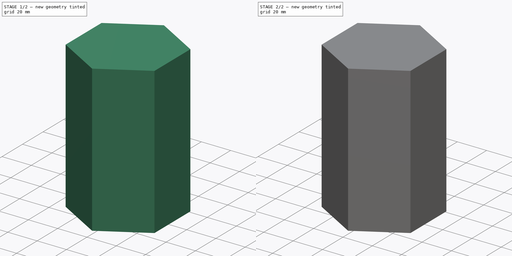
[diagram: build sequence overview — one tinted view per stage of 2, left to right]
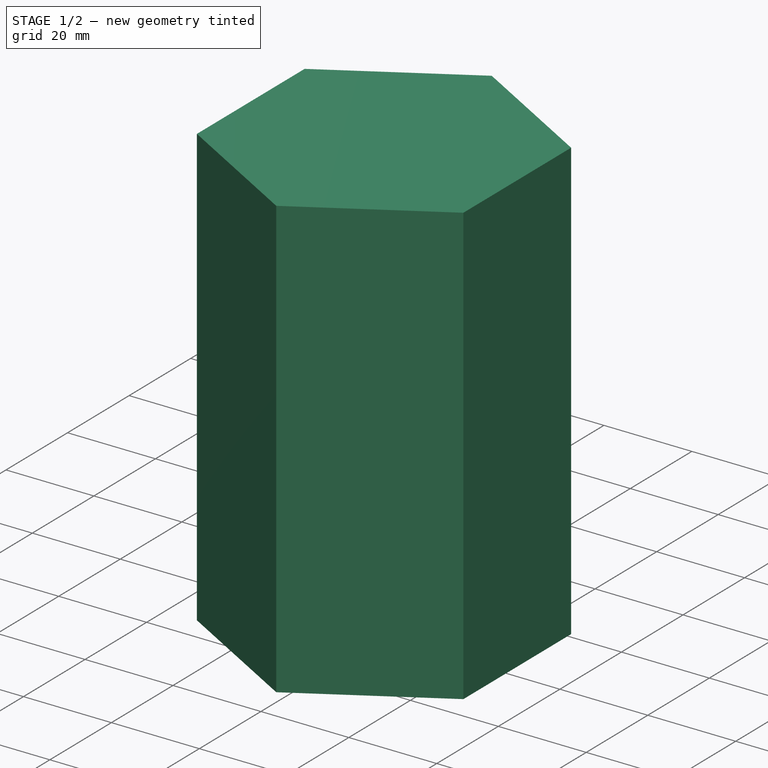
[diagram: stage 1 of 2 — iso view after this stage's code; geometry added in this stage tinted green]
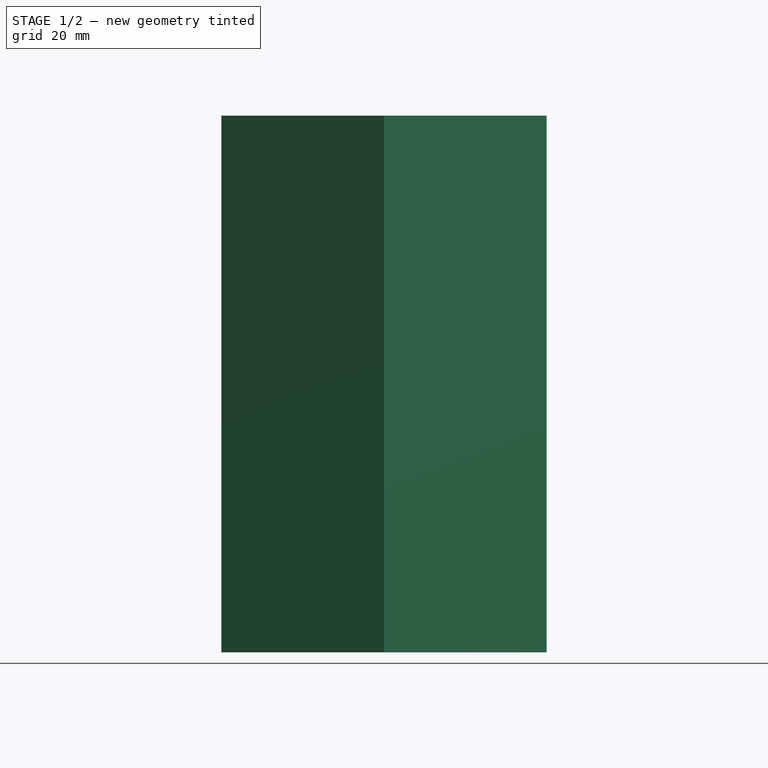
[diagram: stage 1 of 2 — front view after this stage's code; geometry added in this stage tinted green]
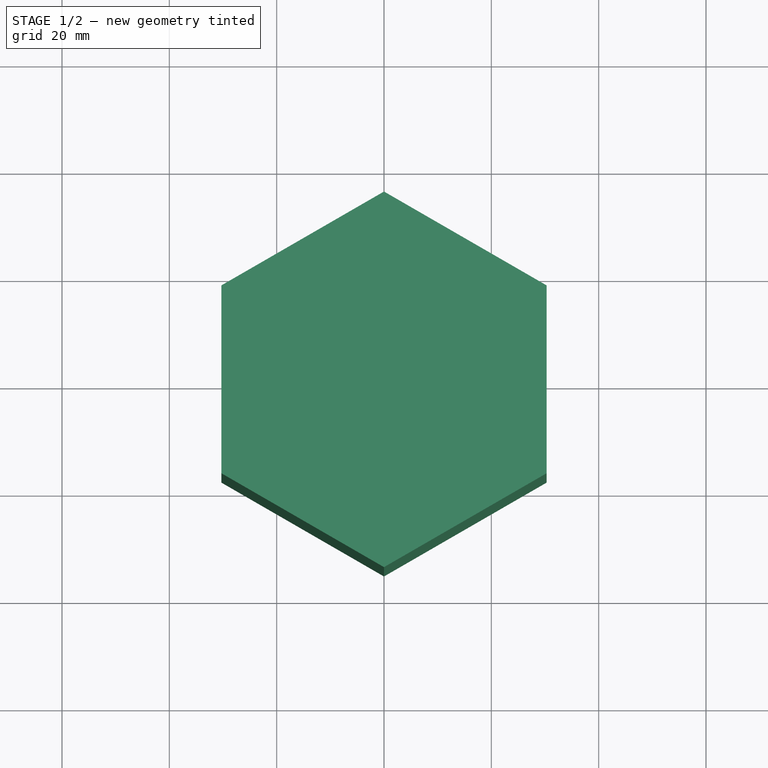
[diagram: stage 1 of 2 — top view after this stage's code; geometry added in this stage tinted green]
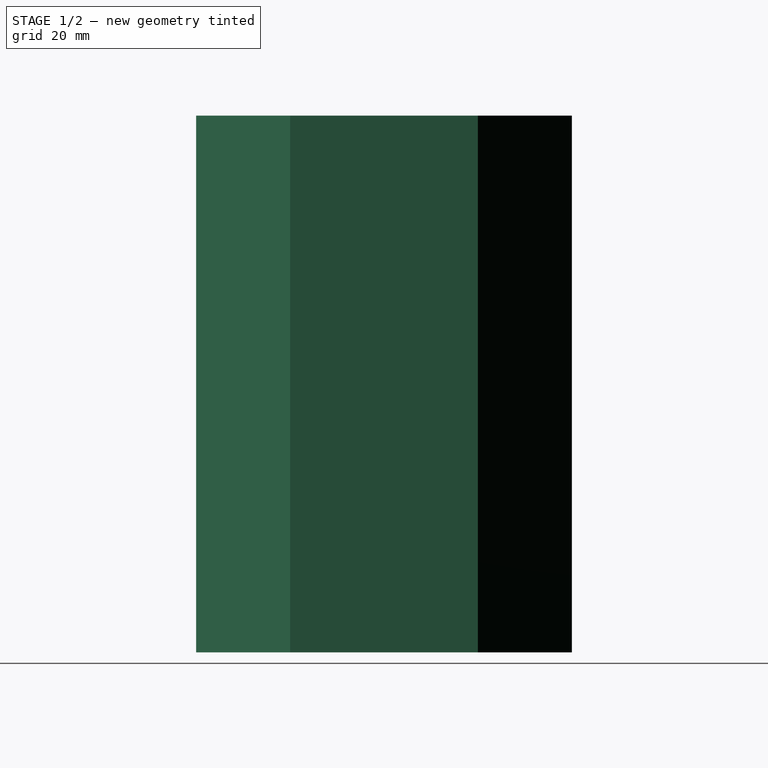
[diagram: stage 1 of 2 — right view after this stage's code; geometry added in this stage tinted green]
FCSTD DOCUMENT  (FreeCAD 1.0R39109 (Git))
Label: Radiateur
License: All rights reserved
objects: Sketcher::SketchObject×11, App::DocumentObjectGroup×3, PartDesign::Pad×1, PartDesign::Thickness×1, PartDesign::Body×1
note: 29 computed .brp shape members not serialized (recipe doc carries the construction recipe); baked Part::Feature solids carry a one-line shape summary decoded from their .brp

FEATURE [Sketcher::SketchObject] Sketch004
  ArcFitTolerance = 1e-06
  AttachmentSupport = -> [XY_Plane025]
  FullyConstrained = true
  MakeInternals = false
  MapMode = 5
  sketch-geometry (7):
    g0: LineSegment StartX=0 StartY=-35 StartZ=0 EndX=30.3109 EndY=-17.5 EndZ=0
    g1: LineSegment StartX=30.3109 StartY=-17.5 StartZ=0 EndX=30.3109 EndY=17.5 EndZ=0
    g2: LineSegment StartX=30.3109 StartY=17.5 StartZ=0 EndX=-1.5099e-12 EndY=35 EndZ=0
    g3: LineSegment StartX=-1.5099e-12 StartY=35 StartZ=0 EndX=-30.3109 EndY=17.5 EndZ=0
    g4: LineSegment StartX=-30.3109 StartY=17.5 StartZ=0 EndX=-30.3109 EndY=-17.5 EndZ=0
    g5: LineSegment StartX=-30.3109 StartY=-17.5 StartZ=0 EndX=0 EndY=-35 EndZ=0
    g6: Circle [constr] CenterX=0 CenterY=0 CenterZ=0 NormalX=0 NormalY=0 NormalZ=1 AngleXU=0 Radius=35
  constraints (16):
    c: Coincident(g0,g1)
    c: Coincident(g1,g2)
    c: Coincident(g2,g3)
    c: Coincident(g3,g4)
    c: Coincident(g4,g5)
    c: Coincident(g5,g0)
    c: Equal(g0, g1-g5) x5
    c: PointOnObject(g0,g6)
    c: PointOnObject(g1,g6)
    c: PointOnObject(g2,g6)
    c: PointOnObject(g3,g6)
    c: PointOnObject(g4,g6)
    c: PointOnObject(g5,g6)
    c: Coincident(g6,g-1)
    c: PointOnObject(g5,g-2)
    c: Distance(g5,g5) = 35
FEATURE [PartDesign::Pad] Pad003
  Direction = (0,0,1)
  Length = 100
  Length2 = 10
  Profile = -> Sketch004
  ReferenceAxis = -> Sketch004 [N_Axis]
  Refine = true
  Suppressed = false
  Type = 0
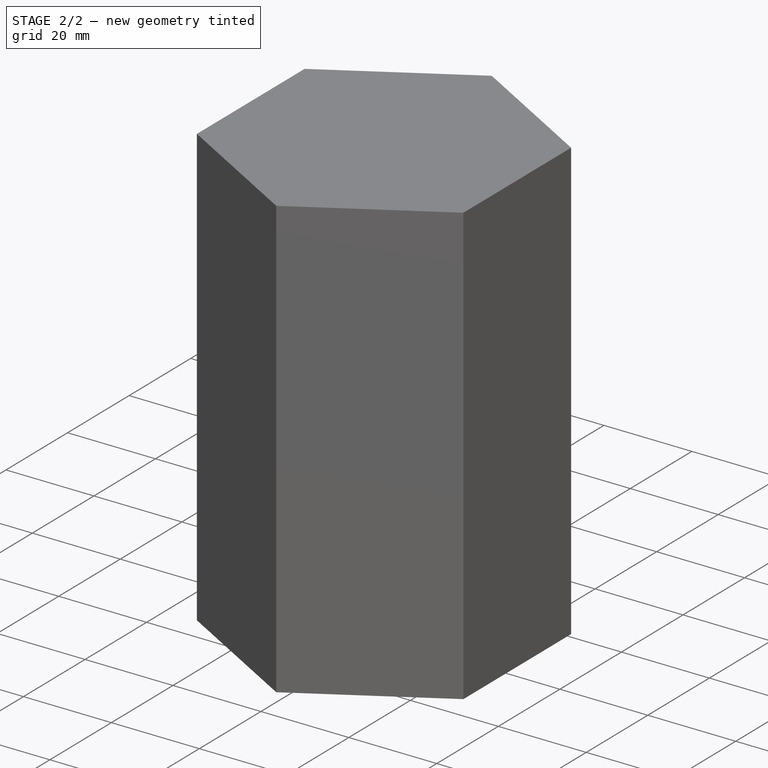
[diagram: stage 2 of 2 — iso view after this stage's code; geometry added in this stage tinted green]
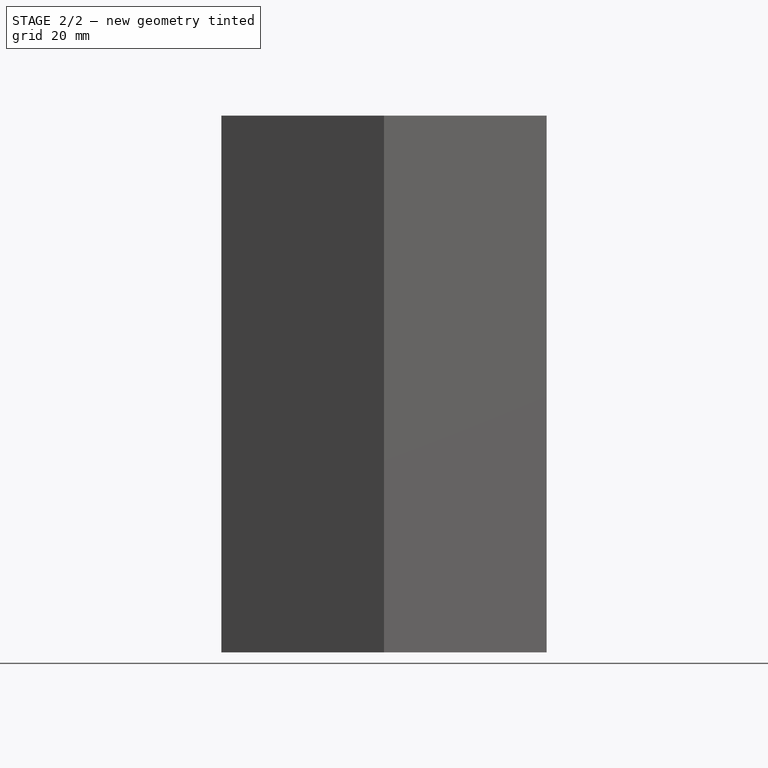
[diagram: stage 2 of 2 — front view after this stage's code; geometry added in this stage tinted green]
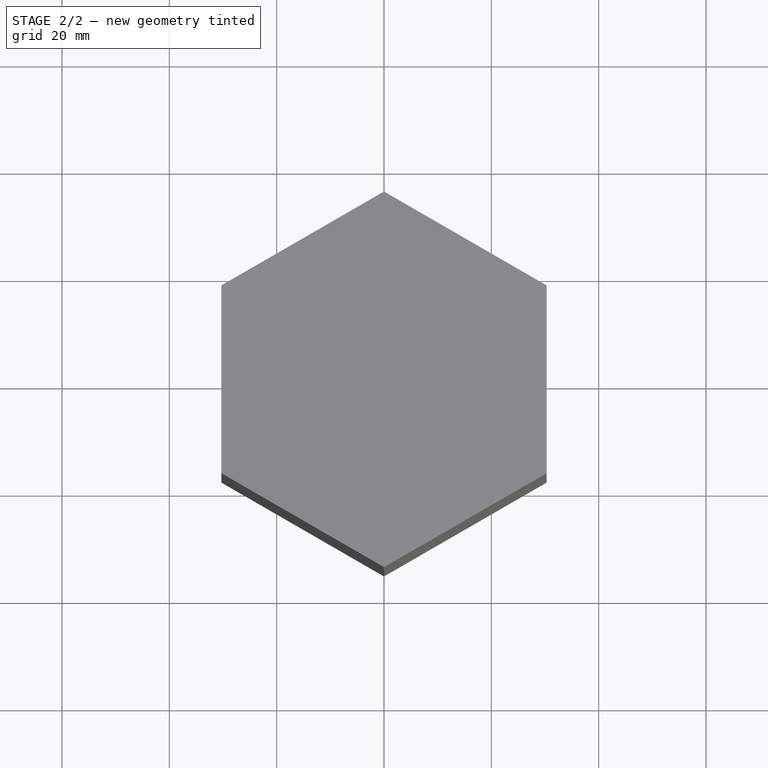
[diagram: stage 2 of 2 — top view after this stage's code; geometry added in this stage tinted green]
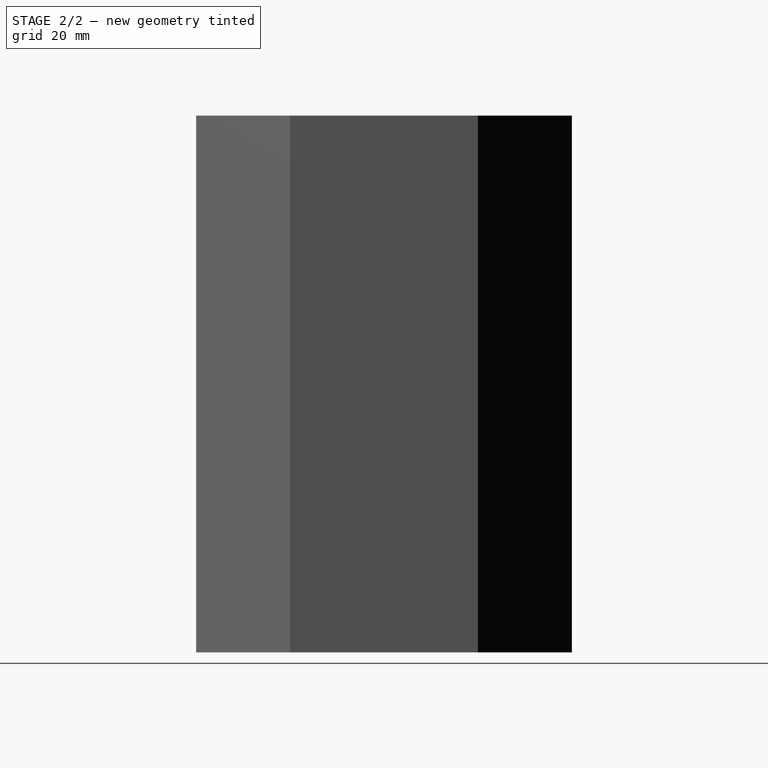
[diagram: stage 2 of 2 — right view after this stage's code; geometry added in this stage tinted green]
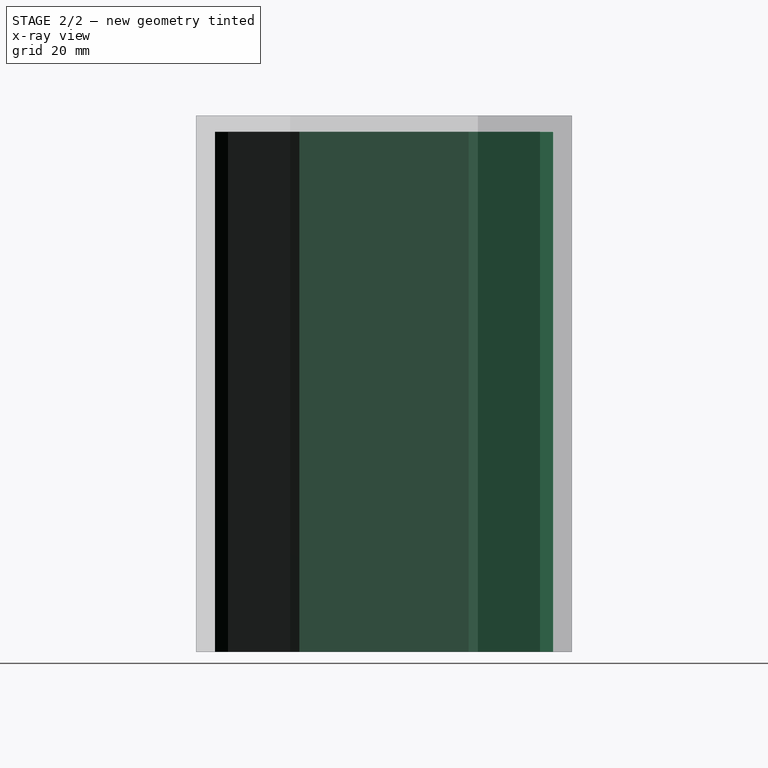
[diagram: stage 2 of 2 — x-ray composite at the right view; earlier geometry ghosted, this stage's added geometry solid]
FEATURE [PartDesign::Thickness] Thickness001
  Base = -> Pad003 [Face7]
  BaseFeature = -> Pad003
  Intersection = false
  Join = 0
  Mode = 0
  Refine = true
  Reversed = true
  SupportTransform = false
  Suppressed = false
  Value = 3
FEATURE [Sketcher::SketchObject] Sketch
  ArcFitTolerance = 1e-06
  AttachmentSupport = -> [Thickness001]
  FullyConstrained = true
  MakeInternals = false
  MapMode = 5
  Placement = pos=(-15.1554,-26.25,0) rot=(0.935113,-0.250563,-0.250563;1.63783rad)
FEATURE [Sketcher::SketchObject] Sketch005
  ArcFitTolerance = 1e-06
  AttachmentSupport = -> [Thickness001]
  ExternalGeometry = -> [Thickness001]
  FullyConstrained = false
  MakeInternals = false
  MapMode = 5
  Placement = pos=(-30.3109,2.02634e-11,0) rot=(-0.57735,0.57735,0.57735;4.18879rad)
  sketch-geometry (9):
    g0: LineSegment [constr] StartX=-17.5 StartY=-1.9e-15 StartZ=0 EndX=17.5 EndY=0 EndZ=0
    g1: LineSegment StartX=-2e-16 StartY=11.4375 StartZ=0 EndX=-2 EndY=10.2828 EndZ=0
    g2: LineSegment StartX=-2 StartY=10.2828 StartZ=0 EndX=-2 EndY=7.97341 EndZ=0
    g3: LineSegment StartX=-2 StartY=7.97341 StartZ=0 EndX=2e-16 EndY=6.81871 EndZ=0
    g4: LineSegment StartX=2e-16 StartY=6.81871 StartZ=0 EndX=2 EndY=7.97341 EndZ=0
    g5: LineSegment StartX=2 StartY=7.97341 StartZ=0 EndX=2 EndY=10.2828 EndZ=0
    g6: LineSegment StartX=2 StartY=10.2828 StartZ=0 EndX=-2e-16 EndY=11.4375 EndZ=0
    g7: Circle [constr] CenterX=0 CenterY=9.12811 CenterZ=0 NormalX=0 NormalY=0 NormalZ=1 AngleXU=0 Radius=2.3094
    g8: LineSegment [constr] StartX=-17.5 StartY=4.76717 StartZ=0 EndX=17.5 EndY=4.76717 EndZ=0
  constraints (21):
    c: Coincident(g0,g-3)
    c: Coincident(g0,g-5)
    c: Coincident(g1,g2)
    c: Coincident(g2,g3)
    c: Coincident(g3,g4)
    c: Coincident(g4,g5)
    c: Coincident(g5,g6)
    c: Coincident(g6,g1)
    c: Equal(g1, g2-g6) x5
    c: PointOnObject(g1,g7)
    c: PointOnObject(g2,g7)
    c: PointOnObject(g3,g7)
    c: PointOnObject(g4,g7)
    c: PointOnObject(g5,g7)
    c: PointOnObject(g6,g7)
    c: PointOnObject(g7,g-2)
    c: PointOnObject(g6,g-2)
    c: Distance(g5,g2) = 4
    c: PointOnObject(g8,g-3)
    c: PointOnObject(g8,g-5)
    c: Horizontal(g8)
FEATURE [PartDesign::Body] Body001  label="Corps"
  AllowCompound = false
  Group = -> [Sketch004,Pad003,Thickness001,Sketch,Sketch005]
  Origin = -> Origin025
  Placement = pos=(0,1.5,7) rot=(0,0,1;0rad)
  Tip = -> Thickness001
FEATURE [App::DocumentObjectGroup] TilingGroup
FEATURE [Sketcher::SketchObject] Sketch006
  ArcFitTolerance = 1e-06
  AttachmentSupport = -> [Thickness001]
  ExternalGeometry = -> [Thickness001]
  FullyConstrained = false
  MakeInternals = false
  MapMode = 5
  Placement = pos=(-30.3109,2.02634e-11,0) rot=(-0.57735,0.57735,0.57735;4.18879rad)
  sketch-geometry (9):
    g0: LineSegment [constr] StartX=-17.5 StartY=-1.9e-15 StartZ=0 EndX=17.5 EndY=0 EndZ=0
    g1: LineSegment StartX=-2e-16 StartY=11.4375 StartZ=0 EndX=-2 EndY=10.2828 EndZ=0
    g2: LineSegment StartX=-2 StartY=10.2828 StartZ=0 EndX=-2 EndY=7.97341 EndZ=0
    g3: LineSegment StartX=-2 StartY=7.97341 StartZ=0 EndX=2e-16 EndY=6.81871 EndZ=0
    g4: LineSegment StartX=2e-16 StartY=6.81871 StartZ=0 EndX=2 EndY=7.97341 EndZ=0
    g5: LineSegment StartX=2 StartY=7.97341 StartZ=0 EndX=2 EndY=10.2828 EndZ=0
    g6: LineSegment StartX=2 StartY=10.2828 StartZ=0 EndX=-2e-16 EndY=11.4375 EndZ=0
    g7: Circle [constr] CenterX=0 CenterY=9.12811 CenterZ=0 NormalX=0 NormalY=0 NormalZ=1 AngleXU=0 Radius=2.3094
    g8: LineSegment [constr] StartX=-17.5 StartY=4.76717 StartZ=0 EndX=17.5 EndY=4.76717 EndZ=0
  constraints (21):
    c: Coincident(g0,g-3)
    c: Coincident(g0,g-5)
    c: Coincident(g1,g2)
    c: Coincident(g2,g3)
    c: Coincident(g3,g4)
    c: Coincident(g4,g5)
    c: Coincident(g5,g6)
    c: Coincident(g6,g1)
    c: Equal(g1, g2-g6) x5
    c: PointOnObject(g1,g7)
    c: PointOnObject(g2,g7)
    c: PointOnObject(g3,g7)
    c: PointOnObject(g4,g7)
    c: PointOnObject(g5,g7)
    c: PointOnObject(g6,g7)
    c: PointOnObject(g7,g-2)
    c: PointOnObject(g6,g-2)
    c: Distance(g5,g2) = 4
    c: PointOnObject(g8,g-3)
    c: PointOnObject(g8,g-5)
    c: Horizontal(g8)
FEATURE [Sketcher::SketchObject] Sketch007
  ArcFitTolerance = 1e-06
  AttachmentSupport = -> [Thickness001]
  ExternalGeometry = -> [Thickness001]
  FullyConstrained = false
  MakeInternals = false
  MapMode = 5
  Placement = pos=(-30.3109,2.02634e-11,0) rot=(-0.57735,0.57735,0.57735;4.18879rad)
  sketch-geometry (9):
    g0: LineSegment [constr] StartX=-17.5 StartY=-1.9e-15 StartZ=0 EndX=17.5 EndY=0 EndZ=0
    g1: LineSegment StartX=-2e-16 StartY=11.4375 StartZ=0 EndX=-2 EndY=10.2828 EndZ=0
    g2: LineSegment StartX=-2 StartY=10.2828 StartZ=0 EndX=-2 EndY=7.97341 EndZ=0
    g3: LineSegment StartX=-2 StartY=7.97341 StartZ=0 EndX=2e-16 EndY=6.81871 EndZ=0
    g4: LineSegment StartX=2e-16 StartY=6.81871 StartZ=0 EndX=2 EndY=7.97341 EndZ=0
    g5: LineSegment StartX=2 StartY=7.97341 StartZ=0 EndX=2 EndY=10.2828 EndZ=0
    g6: LineSegment StartX=2 StartY=10.2828 StartZ=0 EndX=-2e-16 EndY=11.4375 EndZ=0
    g7: Circle [constr] CenterX=0 CenterY=9.12811 CenterZ=0 NormalX=0 NormalY=0 NormalZ=1 AngleXU=0 Radius=2.3094
    g8: LineSegment [constr] StartX=-17.5 StartY=4.76717 StartZ=0 EndX=17.5 EndY=4.76717 EndZ=0
  constraints (21):
    c: Coincident(g0,g-3)
    c: Coincident(g0,g-5)
    c: Coincident(g1,g2)
    c: Coincident(g2,g3)
    c: Coincident(g3,g4)
    c: Coincident(g4,g5)
    c: Coincident(g5,g6)
    c: Coincident(g6,g1)
    c: Equal(g1, g2-g6) x5
    c: PointOnObject(g1,g7)
    c: PointOnObject(g2,g7)
    c: PointOnObject(g3,g7)
    c: PointOnObject(g4,g7)
    c: PointOnObject(g5,g7)
    c: PointOnObject(g6,g7)
    c: PointOnObject(g7,g-2)
    c: PointOnObject(g6,g-2)
    c: Distance(g5,g2) = 4
    c: PointOnObject(g8,g-3)
    c: PointOnObject(g8,g-5)
    c: Horizontal(g8)
FEATURE [Sketcher::SketchObject] Sketch008
  ArcFitTolerance = 1e-06
  AttachmentSupport = -> [Thickness001]
  ExternalGeometry = -> [Thickness001]
  FullyConstrained = false
  MakeInternals = false
  MapMode = 5
  Placement = pos=(-30.3109,2.02634e-11,0) rot=(-0.57735,0.57735,0.57735;4.18879rad)
  sketch-geometry (9):
    g0: LineSegment [constr] StartX=-17.5 StartY=-1.9e-15 StartZ=0 EndX=17.5 EndY=0 EndZ=0
    g1: LineSegment StartX=-2e-16 StartY=11.4375 StartZ=0 EndX=-2 EndY=10.2828 EndZ=0
    g2: LineSegment StartX=-2 StartY=10.2828 StartZ=0 EndX=-2 EndY=7.97341 EndZ=0
    g3: LineSegment StartX=-2 StartY=7.97341 StartZ=0 EndX=2e-16 EndY=6.81871 EndZ=0
    g4: LineSegment StartX=2e-16 StartY=6.81871 StartZ=0 EndX=2 EndY=7.97341 EndZ=0
    g5: LineSegment StartX=2 StartY=7.97341 StartZ=0 EndX=2 EndY=10.2828 EndZ=0
    g6: LineSegment StartX=2 StartY=10.2828 StartZ=0 EndX=-2e-16 EndY=11.4375 EndZ=0
    g7: Circle [constr] CenterX=0 CenterY=9.12811 CenterZ=0 NormalX=0 NormalY=0 NormalZ=1 AngleXU=0 Radius=2.3094
    g8: LineSegment [constr] StartX=-17.5 StartY=4.76717 StartZ=0 EndX=17.5 EndY=4.76717 EndZ=0
  constraints (21):
    c: Coincident(g0,g-3)
    c: Coincident(g0,g-5)
    c: Coincident(g1,g2)
    c: Coincident(g2,g3)
    c: Coincident(g3,g4)
    c: Coincident(g4,g5)
    c: Coincident(g5,g6)
    c: Coincident(g6,g1)
    c: Equal(g1, g2-g6) x5
    c: PointOnObject(g1,g7)
    c: PointOnObject(g2,g7)
    c: PointOnObject(g3,g7)
    c: PointOnObject(g4,g7)
    c: PointOnObject(g5,g7)
    c: PointOnObject(g6,g7)
    c: PointOnObject(g7,g-2)
    c: PointOnObject(g6,g-2)
    c: Distance(g5,g2) = 4
    c: PointOnObject(g8,g-3)
    c: PointOnObject(g8,g-5)
    c: Horizontal(g8)
FEATURE [Sketcher::SketchObject] Sketch009
  ArcFitTolerance = 1e-06
  AttachmentSupport = -> [Thickness001]
  ExternalGeometry = -> [Thickness001]
  FullyConstrained = false
  MakeInternals = false
  MapMode = 5
  Placement = pos=(-30.3109,2.02634e-11,0) rot=(-0.57735,0.57735,0.57735;4.18879rad)
  sketch-geometry (9):
    g0: LineSegment [constr] StartX=-17.5 StartY=-1.9e-15 StartZ=0 EndX=17.5 EndY=0 EndZ=0
    g1: LineSegment StartX=-2e-16 StartY=11.4375 StartZ=0 EndX=-2 EndY=10.2828 EndZ=0
    g2: LineSegment StartX=-2 StartY=10.2828 StartZ=0 EndX=-2 EndY=7.97341 EndZ=0
    g3: LineSegment StartX=-2 StartY=7.97341 StartZ=0 EndX=2e-16 EndY=6.81871 EndZ=0
    g4: LineSegment StartX=2e-16 StartY=6.81871 StartZ=0 EndX=2 EndY=7.97341 EndZ=0
    g5: LineSegment StartX=2 StartY=7.97341 StartZ=0 EndX=2 EndY=10.2828 EndZ=0
    g6: LineSegment StartX=2 StartY=10.2828 StartZ=0 EndX=-2e-16 EndY=11.4375 EndZ=0
    g7: Circle [constr] CenterX=0 CenterY=9.12811 CenterZ=0 NormalX=0 NormalY=0 NormalZ=1 AngleXU=0 Radius=2.3094
    g8: LineSegment [constr] StartX=-17.5 StartY=4.76717 StartZ=0 EndX=17.5 EndY=4.76717 EndZ=0
  constraints (21):
    c: Coincident(g0,g-3)
    c: Coincident(g0,g-5)
    c: Coincident(g1,g2)
    c: Coincident(g2,g3)
    c: Coincident(g3,g4)
    c: Coincident(g4,g5)
    c: Coincident(g5,g6)
    c: Coincident(g6,g1)
    c: Equal(g1, g2-g6) x5
    c: PointOnObject(g1,g7)
    c: PointOnObject(g2,g7)
    c: PointOnObject(g3,g7)
    c: PointOnObject(g4,g7)
    c: PointOnObject(g5,g7)
    c: PointOnObject(g6,g7)
    c: PointOnObject(g7,g-2)
    c: PointOnObject(g6,g-2)
    c: Distance(g5,g2) = 4
    c: PointOnObject(g8,g-3)
    c: PointOnObject(g8,g-5)
    c: Horizontal(g8)
FEATURE [App::DocumentObjectGroup] Pavage
  Group = -> [Sketch006,Sketch007,Sketch008,Sketch009]
FEATURE [Sketcher::SketchObject] Sketch010
  ArcFitTolerance = 1e-06
  AttachmentSupport = -> [Thickness001]
  ExternalGeometry = -> [Thickness001]
  FullyConstrained = false
  MakeInternals = false
  MapMode = 5
  Placement = pos=(-30.3109,2.02634e-11,0) rot=(-0.57735,0.57735,0.57735;4.18879rad)
  sketch-geometry (9):
    g0: LineSegment [constr] StartX=-17.5 StartY=-1.9e-15 StartZ=0 EndX=17.5 EndY=0 EndZ=0
    g1: LineSegment StartX=-2e-16 StartY=11.4375 StartZ=0 EndX=-2 EndY=10.2828 EndZ=0
    g2: LineSegment StartX=-2 StartY=10.2828 StartZ=0 EndX=-2 EndY=7.97341 EndZ=0
    g3: LineSegment StartX=-2 StartY=7.97341 StartZ=0 EndX=2e-16 EndY=6.81871 EndZ=0
    g4: LineSegment StartX=2e-16 StartY=6.81871 StartZ=0 EndX=2 EndY=7.97341 EndZ=0
    g5: LineSegment StartX=2 StartY=7.97341 StartZ=0 EndX=2 EndY=10.2828 EndZ=0
    g6: LineSegment StartX=2 StartY=10.2828 StartZ=0 EndX=-2e-16 EndY=11.4375 EndZ=0
    g7: Circle [constr] CenterX=0 CenterY=9.12811 CenterZ=0 NormalX=0 NormalY=0 NormalZ=1 AngleXU=0 Radius=2.3094
    g8: LineSegment [constr] StartX=-17.5 StartY=4.76717 StartZ=0 EndX=17.5 EndY=4.76717 EndZ=0
  constraints (21):
    c: Coincident(g0,g-3)
    c: Coincident(g0,g-5)
    c: Coincident(g1,g2)
    c: Coincident(g2,g3)
    c: Coincident(g3,g4)
    c: Coincident(g4,g5)
    c: Coincident(g5,g6)
    c: Coincident(g6,g1)
    c: Equal(g1, g2-g6) x5
    c: PointOnObject(g1,g7)
    c: PointOnObject(g2,g7)
    c: PointOnObject(g3,g7)
    c: PointOnObject(g4,g7)
    c: PointOnObject(g5,g7)
    c: PointOnObject(g6,g7)
    c: PointOnObject(g7,g-2)
    c: PointOnObject(g6,g-2)
    c: Distance(g5,g2) = 4
    c: PointOnObject(g8,g-3)
    c: PointOnObject(g8,g-5)
    c: Horizontal(g8)
FEATURE [Sketcher::SketchObject] Sketch011
  ArcFitTolerance = 1e-06
  AttachmentSupport = -> [Thickness001]
  ExternalGeometry = -> [Thickness001]
  FullyConstrained = false
  MakeInternals = false
  MapMode = 5
  Placement = pos=(-30.3109,2.02634e-11,0) rot=(-0.57735,0.57735,0.57735;4.18879rad)
  sketch-geometry (9):
    g0: LineSegment [constr] StartX=-17.5 StartY=-1.9e-15 StartZ=0 EndX=17.5 EndY=0 EndZ=0
    g1: LineSegment StartX=-2e-16 StartY=11.4375 StartZ=0 EndX=-2 EndY=10.2828 EndZ=0
    g2: LineSegment StartX=-2 StartY=10.2828 StartZ=0 EndX=-2 EndY=7.97341 EndZ=0
    g3: LineSegment StartX=-2 StartY=7.97341 StartZ=0 EndX=2e-16 EndY=6.81871 EndZ=0
    g4: LineSegment StartX=2e-16 StartY=6.81871 StartZ=0 EndX=2 EndY=7.97341 EndZ=0
    g5: LineSegment StartX=2 StartY=7.97341 StartZ=0 EndX=2 EndY=10.2828 EndZ=0
    g6: LineSegment StartX=2 StartY=10.2828 StartZ=0 EndX=-2e-16 EndY=11.4375 EndZ=0
    g7: Circle [constr] CenterX=0 CenterY=9.12811 CenterZ=0 NormalX=0 NormalY=0 NormalZ=1 AngleXU=0 Radius=2.3094
    g8: LineSegment [constr] StartX=-17.5 StartY=4.76717 StartZ=0 EndX=17.5 EndY=4.76717 EndZ=0
  constraints (21):
    c: Coincident(g0,g-3)
    c: Coincident(g0,g-5)
    c: Coincident(g1,g2)
    c: Coincident(g2,g3)
    c: Coincident(g3,g4)
    c: Coincident(g4,g5)
    c: Coincident(g5,g6)
    c: Coincident(g6,g1)
    c: Equal(g1, g2-g6) x5
    c: PointOnObject(g1,g7)
    c: PointOnObject(g2,g7)
    c: PointOnObject(g3,g7)
    c: PointOnObject(g4,g7)
    c: PointOnObject(g5,g7)
    c: PointOnObject(g6,g7)
    c: PointOnObject(g7,g-2)
    c: PointOnObject(g6,g-2)
    c: Distance(g5,g2) = 4
    c: PointOnObject(g8,g-3)
    c: PointOnObject(g8,g-5)
    c: Horizontal(g8)
FEATURE [Sketcher::SketchObject] Sketch012
  ArcFitTolerance = 1e-06
  AttachmentSupport = -> [Thickness001]
  ExternalGeometry = -> [Thickness001]
  FullyConstrained = false
  MakeInternals = false
  MapMode = 5
  Placement = pos=(-30.3109,2.02634e-11,0) rot=(-0.57735,0.57735,0.57735;4.18879rad)
  sketch-geometry (9):
    g0: LineSegment [constr] StartX=-17.5 StartY=-1.9e-15 StartZ=0 EndX=17.5 EndY=0 EndZ=0
    g1: LineSegment StartX=-2e-16 StartY=11.4375 StartZ=0 EndX=-2 EndY=10.2828 EndZ=0
    g2: LineSegment StartX=-2 StartY=10.2828 StartZ=0 EndX=-2 EndY=7.97341 EndZ=0
    g3: LineSegment StartX=-2 StartY=7.97341 StartZ=0 EndX=2e-16 EndY=6.81871 EndZ=0
    g4: LineSegment StartX=2e-16 StartY=6.81871 StartZ=0 EndX=2 EndY=7.97341 EndZ=0
    g5: LineSegment StartX=2 StartY=7.97341 StartZ=0 EndX=2 EndY=10.2828 EndZ=0
    g6: LineSegment StartX=2 StartY=10.2828 StartZ=0 EndX=-2e-16 EndY=11.4375 EndZ=0
    g7: Circle [constr] CenterX=0 CenterY=9.12811 CenterZ=0 NormalX=0 NormalY=0 NormalZ=1 AngleXU=0 Radius=2.3094
    g8: LineSegment [constr] StartX=-17.5 StartY=4.76717 StartZ=0 EndX=17.5 EndY=4.76717 EndZ=0
  constraints (21):
    c: Coincident(g0,g-3)
    c: Coincident(g0,g-5)
    c: Coincident(g1,g2)
    c: Coincident(g2,g3)
    c: Coincident(g3,g4)
    c: Coincident(g4,g5)
    c: Coincident(g5,g6)
    c: Coincident(g6,g1)
    c: Equal(g1, g2-g6) x5
    c: PointOnObject(g1,g7)
    c: PointOnObject(g2,g7)
    c: PointOnObject(g3,g7)
    c: PointOnObject(g4,g7)
    c: PointOnObject(g5,g7)
    c: PointOnObject(g6,g7)
    c: PointOnObject(g7,g-2)
    c: PointOnObject(g6,g-2)
    c: Distance(g5,g2) = 4
    c: PointOnObject(g8,g-3)
    c: PointOnObject(g8,g-5)
    c: Horizontal(g8)
FEATURE [Sketcher::SketchObject] Sketch013
  ArcFitTolerance = 1e-06
  AttachmentSupport = -> [Thickness001]
  ExternalGeometry = -> [Thickness001]
  FullyConstrained = false
  MakeInternals = false
  MapMode = 5
  Placement = pos=(-30.3109,2.02634e-11,0) rot=(-0.57735,0.57735,0.57735;4.18879rad)
  sketch-geometry (9):
    g0: LineSegment [constr] StartX=-17.5 StartY=-1.9e-15 StartZ=0 EndX=17.5 EndY=0 EndZ=0
    g1: LineSegment StartX=-2e-16 StartY=11.4375 StartZ=0 EndX=-2 EndY=10.2828 EndZ=0
    g2: LineSegment StartX=-2 StartY=10.2828 StartZ=0 EndX=-2 EndY=7.97341 EndZ=0
    g3: LineSegment StartX=-2 StartY=7.97341 StartZ=0 EndX=2e-16 EndY=6.81871 EndZ=0
    g4: LineSegment StartX=2e-16 StartY=6.81871 StartZ=0 EndX=2 EndY=7.97341 EndZ=0
    g5: LineSegment StartX=2 StartY=7.97341 StartZ=0 EndX=2 EndY=10.2828 EndZ=0
    g6: LineSegment StartX=2 StartY=10.2828 StartZ=0 EndX=-2e-16 EndY=11.4375 EndZ=0
    g7: Circle [constr] CenterX=0 CenterY=9.12811 CenterZ=0 NormalX=0 NormalY=0 NormalZ=1 AngleXU=0 Radius=2.3094
    g8: LineSegment [constr] StartX=-17.5 StartY=4.76717 StartZ=0 EndX=17.5 EndY=4.76717 EndZ=0
  constraints (21):
    c: Coincident(g0,g-3)
    c: Coincident(g0,g-5)
    c: Coincident(g1,g2)
    c: Coincident(g2,g3)
    c: Coincident(g3,g4)
    c: Coincident(g4,g5)
    c: Coincident(g5,g6)
    c: Coincident(g6,g1)
    c: Equal(g1, g2-g6) x5
    c: PointOnObject(g1,g7)
    c: PointOnObject(g2,g7)
    c: PointOnObject(g3,g7)
    c: PointOnObject(g4,g7)
    c: PointOnObject(g5,g7)
    c: PointOnObject(g6,g7)
    c: PointOnObject(g7,g-2)
    c: PointOnObject(g6,g-2)
    c: Distance(g5,g2) = 4
    c: PointOnObject(g8,g-3)
    c: PointOnObject(g8,g-5)
    c: Horizontal(g8)
FEATURE [App::DocumentObjectGroup] Pavage001
  Group = -> [Sketch010,Sketch011,Sketch012,Sketch013]
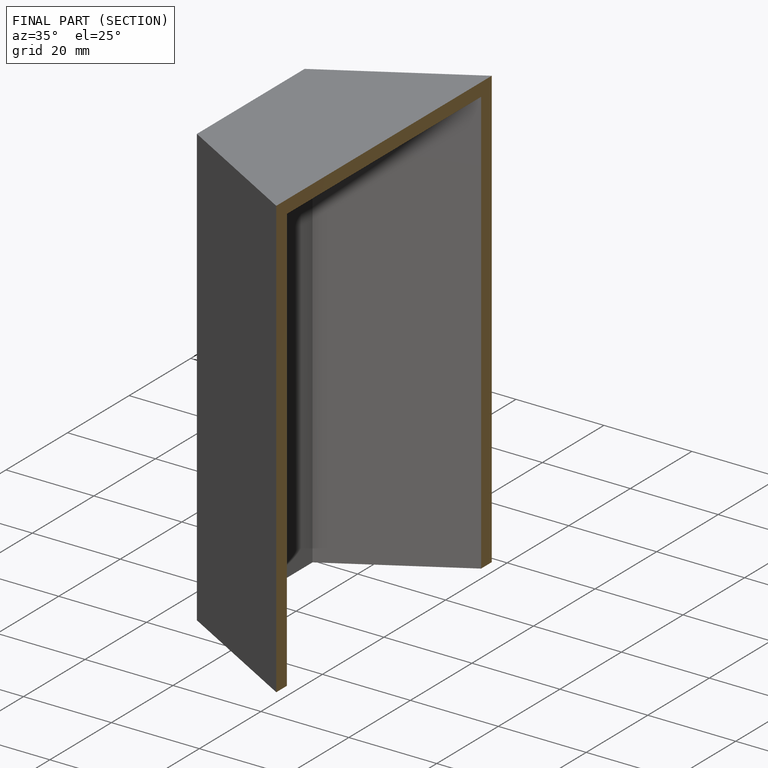
[diagram: finished part — half-section view (interior)]
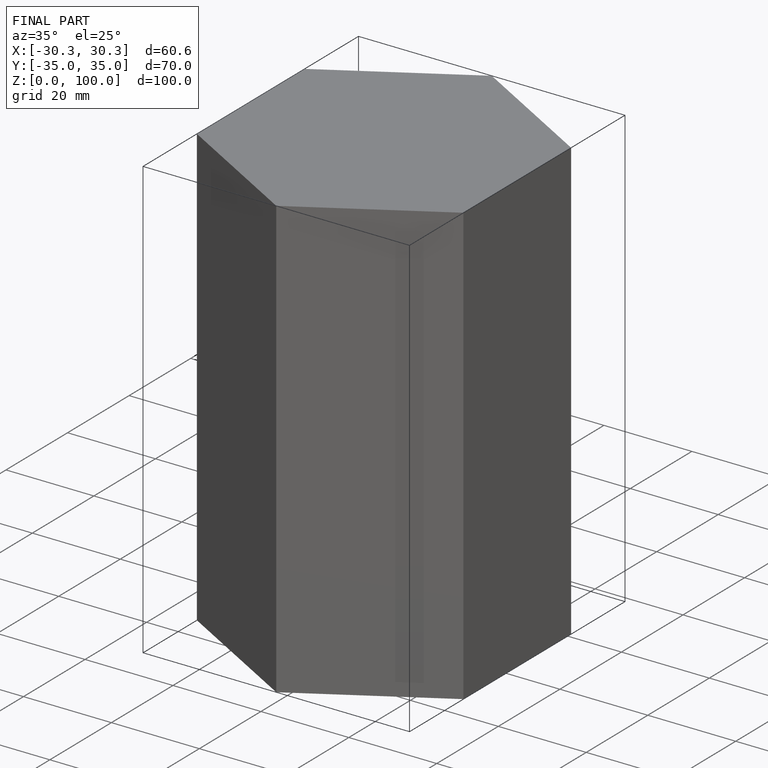
[diagram: finished part — iso view with bounding-box wireframe]
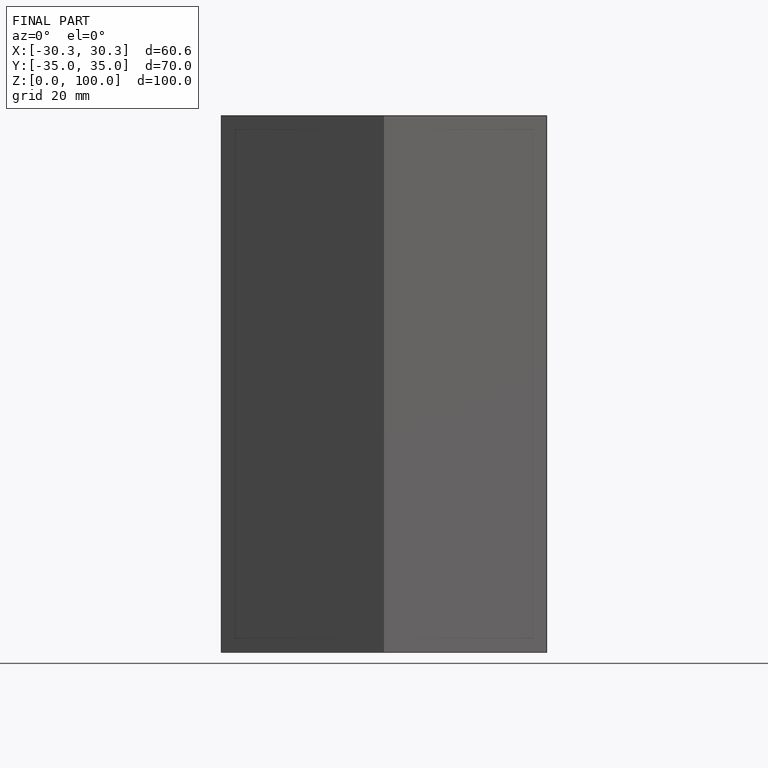
[diagram: finished part — front view with bounding-box wireframe]
